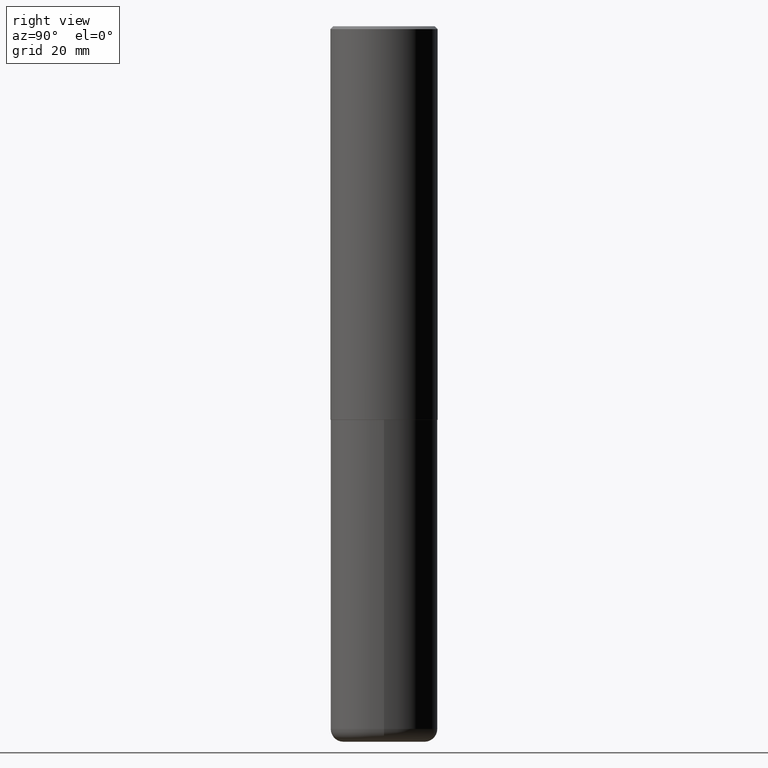
[diagram: clean part render]
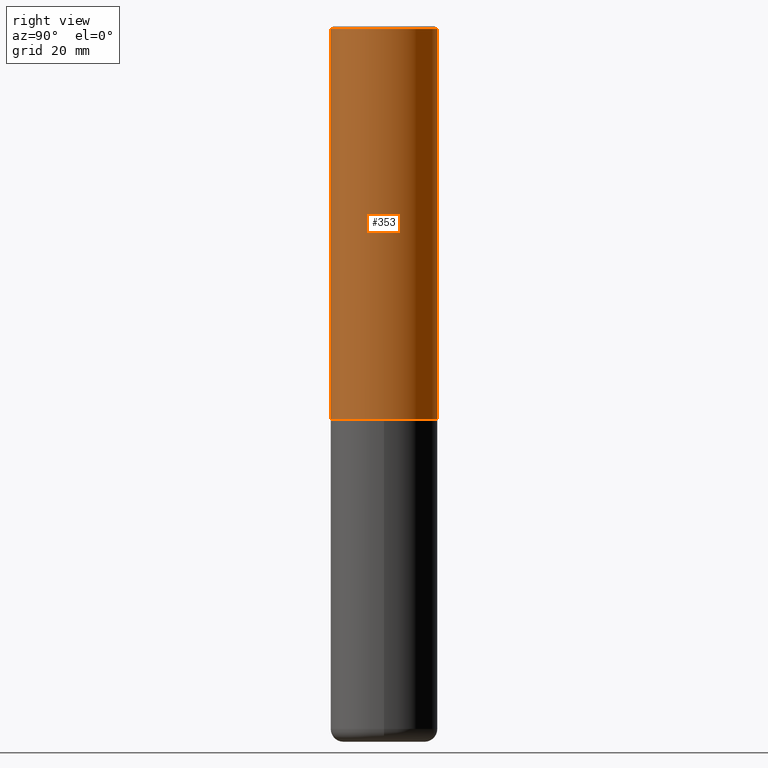
[diagram: same view with one face highlighted and labeled with its STEP entity id]
A machine part, right view. The second image highlights one B-rep face of the part: STEP entity #353.
In plain terms, the highlighted cylindrical surface (partial cylindrical patch) has radius 9.525 mm, axis along (-0, 0, 1).
Its self-contained STEP definition (entity closure, byte-faithful):
#7 = VERTEX_POINT ( 'NONE', #367 ) ;
#27 = DIRECTION ( 'NONE',  ( -6.982962677686266711E-15, -1.000000000000000000, 3.490662795793665951E-15 ) ) ;
#29 = DIRECTION ( 'NONE',  ( -2.446040391741596606E-29, 3.490662795793665557E-15, 1.000000000000000000 ) ) ;
#45 = CIRCLE ( 'NONE', #195, 0.3750000000000000555 ) ;
#57 = LINE ( 'NONE', #100, #384 ) ;
#87 = ORIENTED_EDGE ( 'NONE', *, *, #355, .T. ) ;
#90 = AXIS2_PLACEMENT_3D ( 'NONE', #265, #322, #94 ) ;
#94 = DIRECTION ( 'NONE',  ( -6.982962677686265922E-15, -1.000000000000000000, 2.913971193241877611E-15 ) ) ;
#100 = CARTESIAN_POINT ( 'NONE',  ( 2.664535259100376880E-15, 0.3750000000000002220, -1.308998548422625521E-15 ) ) ;
#112 = ORIENTED_EDGE ( 'NONE', *, *, #269, .F. ) ;
#142 = VERTEX_POINT ( 'NONE', #377 ) ;
#152 = EDGE_CURVE ( 'NONE', #397, #142, #370, .T. ) ;
#163 = DIRECTION ( 'NONE',  ( -2.446040391741596606E-29, 3.490662795793665557E-15, 1.000000000000000000 ) ) ;
#181 = ORIENTED_EDGE ( 'NONE', *, *, #152, .F. ) ;
#195 = AXIS2_PLACEMENT_3D ( 'NONE', #249, #163, #260 ) ;
#218 = DIRECTION ( 'NONE',  ( -2.446040391741596606E-29, 3.490662795793665557E-15, 1.000000000000000000 ) ) ;
#249 = CARTESIAN_POINT ( 'NONE',  ( 4.892080783483214581E-31, -6.981325591587361238E-17, -0.02000000000000008715 ) ) ;
#253 = VERTEX_POINT ( 'NONE', #403 ) ;
#257 = AXIS2_PLACEMENT_3D ( 'NONE', #348, #29, #27 ) ;
#260 = DIRECTION ( 'NONE',  ( -6.982962677686265922E-15, -1.000000000000000000, 3.494488891895536035E-15 ) ) ;
#265 = CARTESIAN_POINT ( 'NONE',  ( 6.724165036897648492E-29, -9.595832025636787455E-15, -2.749000000000000110 ) ) ;
#269 = EDGE_CURVE ( 'NONE', #142, #253, #45, .T. ) ;
#272 = ORIENTED_EDGE ( 'NONE', *, *, #315, .T. ) ;
#292 = CYLINDRICAL_SURFACE ( 'NONE', #257, 0.3750000000000002220 ) ;
#296 = CIRCLE ( 'NONE', #90, 0.3750000000000003886 ) ;
#315 = EDGE_CURVE ( 'NONE', #397, #7, #296, .T. ) ;
#319 = CARTESIAN_POINT ( 'NONE',  ( -2.618611004132284935E-15, -0.3750000000000099920, -2.748999999999999222 ) ) ;
#322 = DIRECTION ( 'NONE',  ( -2.446040391741596606E-29, 3.490662795793665557E-15, 1.000000000000000000 ) ) ;
#325 = FACE_OUTER_BOUND ( 'NONE', #359, .T. ) ;
#348 = CARTESIAN_POINT ( 'NONE',  ( 0.000000000000000000, 0.000000000000000000, 0.000000000000000000 ) ) ;
#353 = ADVANCED_FACE ( 'NONE', ( #325 ), #292, .T. ) ;
#355 = EDGE_CURVE ( 'NONE', #7, #253, #57, .T. ) ;
#359 = EDGE_LOOP ( 'NONE', ( #272, #87, #112, #181 ) ) ;
#367 = CARTESIAN_POINT ( 'NONE',  ( 2.664535259100411196E-15, 0.3749999999999907296, -2.749000000000000998 ) ) ;
#370 = LINE ( 'NONE', #401, #405 ) ;
#377 = CARTESIAN_POINT ( 'NONE',  ( -2.572686749164323547E-15, -0.3750000000000001110, -0.01999999999999877570 ) ) ;
#382 = DIRECTION ( 'NONE',  ( -2.446040391741596606E-29, 3.490662795793665557E-15, 1.000000000000000000 ) ) ;
#384 = VECTOR ( 'NONE', #382, 39.37007874015748143 ) ;
#397 = VERTEX_POINT ( 'NONE', #319 ) ;
#401 = CARTESIAN_POINT ( 'NONE',  ( -2.618611004132351594E-15, -0.3750000000000002220, 1.308998548422625521E-15 ) ) ;
#403 = CARTESIAN_POINT ( 'NONE',  ( 2.618611004132350411E-15, 0.3749999999999999445, -0.02000000000000139513 ) ) ;
#405 = VECTOR ( 'NONE', #218, 39.37007874015748143 ) ;